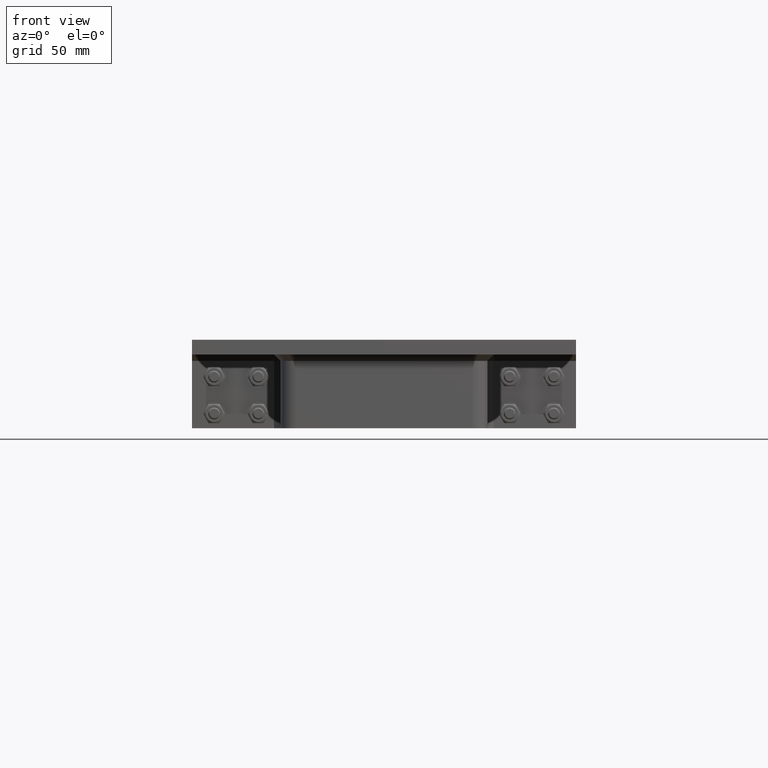
[diagram: clean part render]
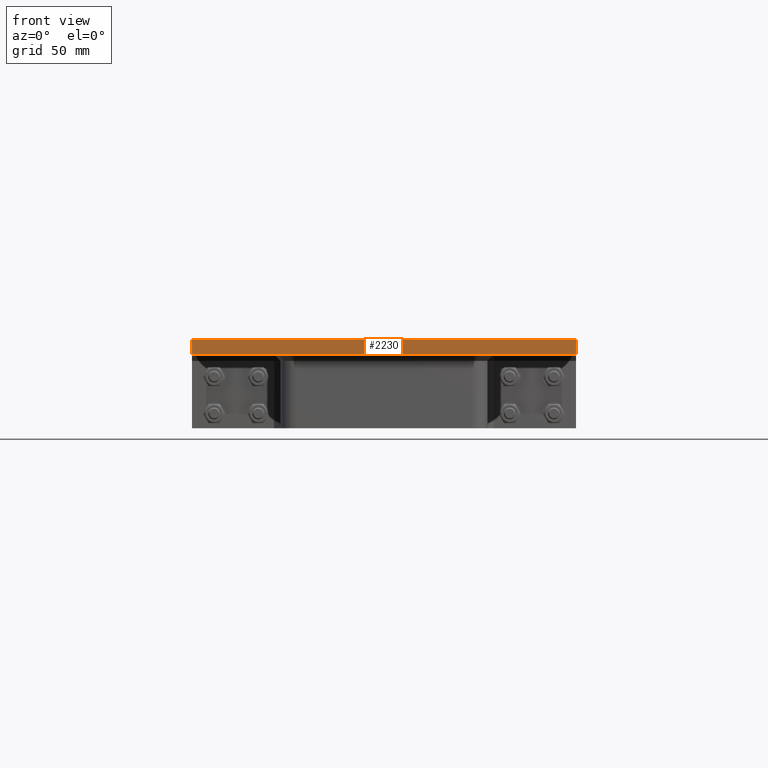
[diagram: same view with one face highlighted and labeled with its STEP entity id]
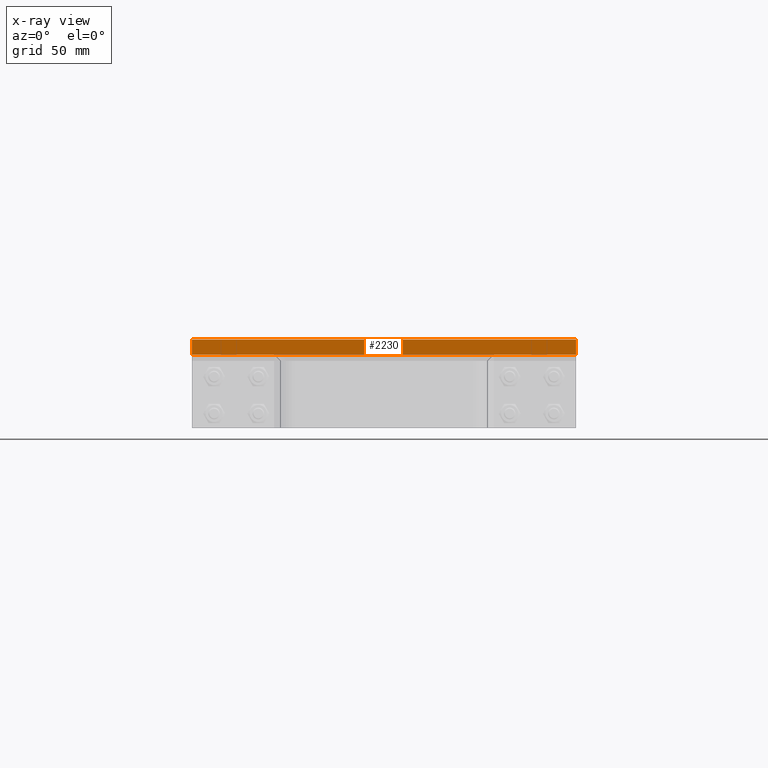
[diagram: x-ray of the same camera — body ghosted, the highlighted face saturated]
A machine part, front view. The second image highlights one B-rep face of the part: STEP entity #2230.
The next image is the same camera in x-ray: the body ghosted, the highlighted face saturated — about 0% of this face is hidden behind the body in this view.
In plain terms, the highlighted planar face has unit normal (0, -1, 0).
Its self-contained STEP definition (entity closure, byte-faithful):
#404=FACE_OUTER_BOUND('',#560,.T.);
#560=EDGE_LOOP('',(#1746,#1747,#1748,#1749));
#717=LINE('',#3482,#891);
#733=LINE('',#3557,#907);
#738=LINE('',#3567,#912);
#748=LINE('',#3588,#922);
#891=VECTOR('',#2806,10.);
#907=VECTOR('',#2886,10.);
#912=VECTOR('',#2893,10.);
#922=VECTOR('',#2911,10.);
#1061=VERTEX_POINT('',#3479);
#1062=VERTEX_POINT('',#3481);
#1089=VERTEX_POINT('',#3556);
#1092=VERTEX_POINT('',#3564);
#1266=EDGE_CURVE('',#1061,#1062,#717,.T.);
#1303=EDGE_CURVE('',#1089,#1062,#733,.T.);
#1308=EDGE_CURVE('',#1092,#1061,#738,.T.);
#1320=EDGE_CURVE('',#1089,#1092,#748,.T.);
#1746=ORIENTED_EDGE('',*,*,#1320,.F.);
#1747=ORIENTED_EDGE('',*,*,#1303,.T.);
#1748=ORIENTED_EDGE('',*,*,#1266,.F.);
#1749=ORIENTED_EDGE('',*,*,#1308,.F.);
#2145=PLANE('',#2563);
#2230=ADVANCED_FACE('',(#404),#2145,.T.);
#2563=AXIS2_PLACEMENT_3D('',#3638,#2972,#2973);
#2806=DIRECTION('',(-1.,0.,0.));
#2886=DIRECTION('',(0.,0.,-1.));
#2893=DIRECTION('',(0.,0.,-1.));
#2911=DIRECTION('',(1.,0.,0.));
#2972=DIRECTION('center_axis',(0.,-1.,0.));
#2973=DIRECTION('ref_axis',(-1.,0.,0.));
#3479=CARTESIAN_POINT('',(130.25,-209.,-10.));
#3481=CARTESIAN_POINT('',(-130.25,-209.,-10.));
#3482=CARTESIAN_POINT('',(-130.25,-209.,-10.));
#3556=CARTESIAN_POINT('',(-130.25,-209.,0.));
#3557=CARTESIAN_POINT('',(-130.25,-209.,0.));
#3564=CARTESIAN_POINT('',(130.25,-209.,0.));
#3567=CARTESIAN_POINT('',(130.25,-209.,0.));
#3588=CARTESIAN_POINT('',(-130.25,-209.,0.));
#3638=CARTESIAN_POINT('Origin',(130.25,-209.,0.));